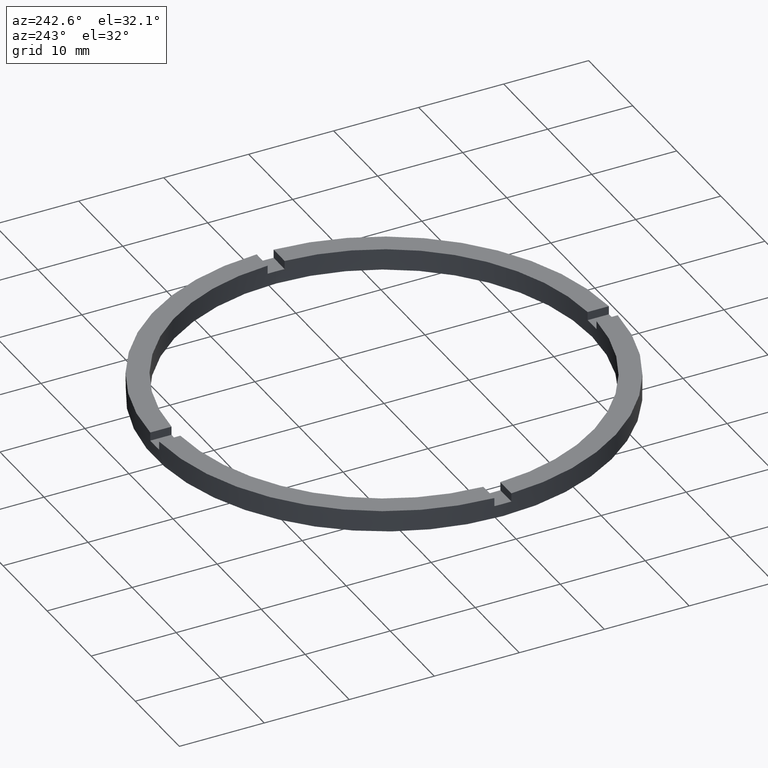
[diagram: clean part render]
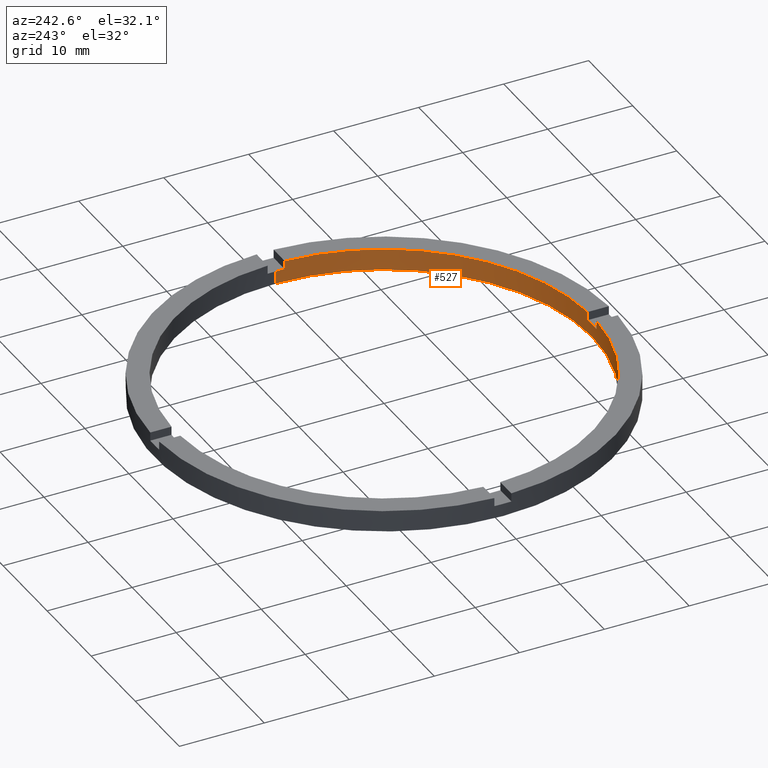
[diagram: same view with one face highlighted and labeled with its STEP entity id]
A machine part, auxiliary view. The second image highlights one B-rep face of the part: STEP entity #527.
In plain terms, the highlighted cylindrical surface (partial cylindrical patch) has radius 24.5 mm, axis along (-0, -0, -1).
Its self-contained STEP definition (entity closure, byte-faithful):
#6 = CARTESIAN_POINT ( 'NONE',  ( 0.000000000000000000, 0.000000000000000000, 0.000000000000000000 ) ) ;
#10 = ORIENTED_EDGE ( 'NONE', *, *, #378, .T. ) ;
#18 = VERTEX_POINT ( 'NONE', #571 ) ;
#25 = VERTEX_POINT ( 'NONE', #609 ) ;
#30 = ORIENTED_EDGE ( 'NONE', *, *, #100, .T. ) ;
#64 = DIRECTION ( 'NONE',  ( 1.000000000000000000, 0.000000000000000000, 0.000000000000000000 ) ) ;
#77 = CARTESIAN_POINT ( 'NONE',  ( 0.000000000000000000, 0.000000000000000000, 1.500000000000000000 ) ) ;
#79 = AXIS2_PLACEMENT_3D ( 'NONE', #640, #270, #264 ) ;
#87 = CARTESIAN_POINT ( 'NONE',  ( 0.9999999999998397948, -24.47958332978729956, 1.500000000000000000 ) ) ;
#100 = EDGE_CURVE ( 'NONE', #760, #484, #144, .T. ) ;
#103 = CARTESIAN_POINT ( 'NONE',  ( 24.50000000000000000, 3.000384657911015469E-15, 0.000000000000000000 ) ) ;
#104 = AXIS2_PLACEMENT_3D ( 'NONE', #698, #398, #548 ) ;
#109 = EDGE_CURVE ( 'NONE', #239, #434, #424, .T. ) ;
#110 = CARTESIAN_POINT ( 'NONE',  ( -24.47958332978729601, -1.000000000000026201, 2.500000000000000000 ) ) ;
#111 = CARTESIAN_POINT ( 'NONE',  ( -24.47958332978729601, -1.000000000000026201, 1.500000000000000000 ) ) ;
#118 = CARTESIAN_POINT ( 'NONE',  ( 24.50000000000000000, 3.000384657911015469E-15, 2.500000000000000000 ) ) ;
#141 = LINE ( 'NONE', #775, #415 ) ;
#144 = CIRCLE ( 'NONE', #423, 24.50000000000000000 ) ;
#146 = AXIS2_PLACEMENT_3D ( 'NONE', #77, #420, #181 ) ;
#149 = CARTESIAN_POINT ( 'NONE',  ( 0.000000000000000000, 0.000000000000000000, 2.500000000000000000 ) ) ;
#153 = EDGE_CURVE ( 'NONE', #239, #484, #168, .T. ) ;
#168 = LINE ( 'NONE', #261, #400 ) ;
#170 = CARTESIAN_POINT ( 'NONE',  ( 0.9999999999998397948, -24.47958332978729956, 2.500000000000000000 ) ) ;
#174 = EDGE_CURVE ( 'NONE', #25, #434, #672, .T. ) ;
#175 = CARTESIAN_POINT ( 'NONE',  ( 0.9999999999998397948, -24.47958332978729956, 2.500000000000000000 ) ) ;
#181 = DIRECTION ( 'NONE',  ( 1.000000000000000000, 0.000000000000000000, 0.000000000000000000 ) ) ;
#184 = VECTOR ( 'NONE', #267, 1000.000000000000000 ) ;
#192 = LINE ( 'NONE', #118, #693 ) ;
#214 = VERTEX_POINT ( 'NONE', #103 ) ;
#238 = EDGE_CURVE ( 'NONE', #296, #18, #678, .T. ) ;
#239 = VERTEX_POINT ( 'NONE', #110 ) ;
#256 = DIRECTION ( 'NONE',  ( -0.000000000000000000, -0.000000000000000000, -1.000000000000000000 ) ) ;
#261 = CARTESIAN_POINT ( 'NONE',  ( -24.47958332978729601, -1.000000000000026201, 2.500000000000000000 ) ) ;
#264 = DIRECTION ( 'NONE',  ( 1.000000000000000000, 0.000000000000000000, 0.000000000000000000 ) ) ;
#267 = DIRECTION ( 'NONE',  ( -0.000000000000000000, -0.000000000000000000, -1.000000000000000000 ) ) ;
#270 = DIRECTION ( 'NONE',  ( 0.000000000000000000, 0.000000000000000000, 1.000000000000000000 ) ) ;
#283 = VERTEX_POINT ( 'NONE', #175 ) ;
#296 = VERTEX_POINT ( 'NONE', #778 ) ;
#297 = VERTEX_POINT ( 'NONE', #392 ) ;
#302 = AXIS2_PLACEMENT_3D ( 'NONE', #782, #605, #64 ) ;
#308 = VERTEX_POINT ( 'NONE', #87 ) ;
#317 = EDGE_CURVE ( 'NONE', #296, #544, #141, .T. ) ;
#321 = DIRECTION ( 'NONE',  ( -0.000000000000000000, -0.000000000000000000, -1.000000000000000000 ) ) ;
#329 = CARTESIAN_POINT ( 'NONE',  ( 0.000000000000000000, 0.000000000000000000, 1.500000000000000000 ) ) ;
#338 = AXIS2_PLACEMENT_3D ( 'NONE', #6, #634, #570 ) ;
#350 = ORIENTED_EDGE ( 'NONE', *, *, #109, .T. ) ;
#352 = ORIENTED_EDGE ( 'NONE', *, *, #565, .T. ) ;
#360 = DIRECTION ( 'NONE',  ( -0.000000000000000000, -0.000000000000000000, -1.000000000000000000 ) ) ;
#372 = DIRECTION ( 'NONE',  ( 0.000000000000000000, 0.000000000000000000, 1.000000000000000000 ) ) ;
#378 = EDGE_CURVE ( 'NONE', #25, #308, #465, .T. ) ;
#392 = CARTESIAN_POINT ( 'NONE',  ( -24.50000000000000000, 0.000000000000000000, 0.000000000000000000 ) ) ;
#396 = EDGE_CURVE ( 'NONE', #760, #297, #455, .T. ) ;
#398 = DIRECTION ( 'NONE',  ( 0.000000000000000000, 0.000000000000000000, 1.000000000000000000 ) ) ;
#400 = VECTOR ( 'NONE', #321, 1000.000000000000000 ) ;
#402 = CARTESIAN_POINT ( 'NONE',  ( -1.000000000000160316, -24.47958332978728890, 2.500000000000000000 ) ) ;
#415 = VECTOR ( 'NONE', #453, 1000.000000000000000 ) ;
#420 = DIRECTION ( 'NONE',  ( -0.000000000000000000, 0.000000000000000000, 1.000000000000000000 ) ) ;
#423 = AXIS2_PLACEMENT_3D ( 'NONE', #329, #372, #633 ) ;
#424 = CIRCLE ( 'NONE', #104, 24.50000000000000000 ) ;
#425 = CARTESIAN_POINT ( 'NONE',  ( -24.50000000000000000, 0.000000000000000000, 2.500000000000000000 ) ) ;
#434 = VERTEX_POINT ( 'NONE', #575 ) ;
#444 = FACE_OUTER_BOUND ( 'NONE', #679, .T. ) ;
#453 = DIRECTION ( 'NONE',  ( 0.000000000000000000, 0.000000000000000000, 1.000000000000000000 ) ) ;
#454 = CYLINDRICAL_SURFACE ( 'NONE', #591, 24.50000000000000000 ) ;
#455 = LINE ( 'NONE', #425, #712 ) ;
#464 = ORIENTED_EDGE ( 'NONE', *, *, #317, .F. ) ;
#465 = CIRCLE ( 'NONE', #146, 24.50000000000000000 ) ;
#474 = ORIENTED_EDGE ( 'NONE', *, *, #518, .F. ) ;
#476 = ORIENTED_EDGE ( 'NONE', *, *, #238, .T. ) ;
#484 = VERTEX_POINT ( 'NONE', #111 ) ;
#488 = DIRECTION ( 'NONE',  ( 0.000000000000000000, 0.000000000000000000, 1.000000000000000000 ) ) ;
#490 = ORIENTED_EDGE ( 'NONE', *, *, #174, .F. ) ;
#502 = DIRECTION ( 'NONE',  ( -1.000000000000000000, 0.000000000000000000, 0.000000000000000000 ) ) ;
#511 = ORIENTED_EDGE ( 'NONE', *, *, #396, .F. ) ;
#518 = EDGE_CURVE ( 'NONE', #297, #214, #709, .T. ) ;
#527 = ADVANCED_FACE ( 'NONE', ( #444 ), #454, .F. ) ;
#544 = VERTEX_POINT ( 'NONE', #550 ) ;
#548 = DIRECTION ( 'NONE',  ( 1.000000000000000000, 0.000000000000000000, 0.000000000000000000 ) ) ;
#550 = CARTESIAN_POINT ( 'NONE',  ( 24.47958332978728890, -1.000000000000157208, 2.500000000000000000 ) ) ;
#554 = ORIENTED_EDGE ( 'NONE', *, *, #153, .F. ) ;
#565 = EDGE_CURVE ( 'NONE', #283, #544, #704, .T. ) ;
#570 = DIRECTION ( 'NONE',  ( 1.000000000000000000, 0.000000000000000000, 0.000000000000000000 ) ) ;
#571 = CARTESIAN_POINT ( 'NONE',  ( 24.50000000000000000, 3.000384657911015469E-15, 1.500000000000000000 ) ) ;
#572 = EDGE_CURVE ( 'NONE', #283, #308, #707, .T. ) ;
#575 = CARTESIAN_POINT ( 'NONE',  ( -1.000000000000160316, -24.47958332978728890, 2.500000000000000000 ) ) ;
#577 = DIRECTION ( 'NONE',  ( -0.000000000000000000, -0.000000000000000000, -1.000000000000000000 ) ) ;
#589 = EDGE_CURVE ( 'NONE', #18, #214, #192, .T. ) ;
#591 = AXIS2_PLACEMENT_3D ( 'NONE', #149, #256, #502 ) ;
#601 = ORIENTED_EDGE ( 'NONE', *, *, #589, .T. ) ;
#605 = DIRECTION ( 'NONE',  ( 0.000000000000000000, 0.000000000000000000, 1.000000000000000000 ) ) ;
#609 = CARTESIAN_POINT ( 'NONE',  ( -1.000000000000160316, -24.47958332978728890, 1.500000000000000000 ) ) ;
#612 = CARTESIAN_POINT ( 'NONE',  ( -24.50000000000000000, 0.000000000000000000, 1.500000000000000000 ) ) ;
#633 = DIRECTION ( 'NONE',  ( 1.000000000000000000, 0.000000000000000000, 0.000000000000000000 ) ) ;
#634 = DIRECTION ( 'NONE',  ( 0.000000000000000000, 0.000000000000000000, 1.000000000000000000 ) ) ;
#640 = CARTESIAN_POINT ( 'NONE',  ( 0.000000000000000000, 0.000000000000000000, 1.500000000000000000 ) ) ;
#672 = LINE ( 'NONE', #402, #673 ) ;
#673 = VECTOR ( 'NONE', #488, 1000.000000000000000 ) ;
#678 = CIRCLE ( 'NONE', #79, 24.50000000000000000 ) ;
#679 = EDGE_LOOP ( 'NONE', ( #476, #601, #474, #511, #30, #554, #350, #490, #10, #722, #352, #464 ) ) ;
#693 = VECTOR ( 'NONE', #577, 1000.000000000000000 ) ;
#698 = CARTESIAN_POINT ( 'NONE',  ( 0.000000000000000000, 0.000000000000000000, 2.500000000000000000 ) ) ;
#704 = CIRCLE ( 'NONE', #302, 24.50000000000000000 ) ;
#707 = LINE ( 'NONE', #170, #184 ) ;
#709 = CIRCLE ( 'NONE', #338, 24.50000000000000000 ) ;
#712 = VECTOR ( 'NONE', #360, 1000.000000000000000 ) ;
#722 = ORIENTED_EDGE ( 'NONE', *, *, #572, .F. ) ;
#760 = VERTEX_POINT ( 'NONE', #612 ) ;
#775 = CARTESIAN_POINT ( 'NONE',  ( 24.47958332978728890, -1.000000000000157208, 2.500000000000000000 ) ) ;
#778 = CARTESIAN_POINT ( 'NONE',  ( 24.47958332978728890, -1.000000000000157208, 1.500000000000000000 ) ) ;
#782 = CARTESIAN_POINT ( 'NONE',  ( 0.000000000000000000, 0.000000000000000000, 2.500000000000000000 ) ) ;